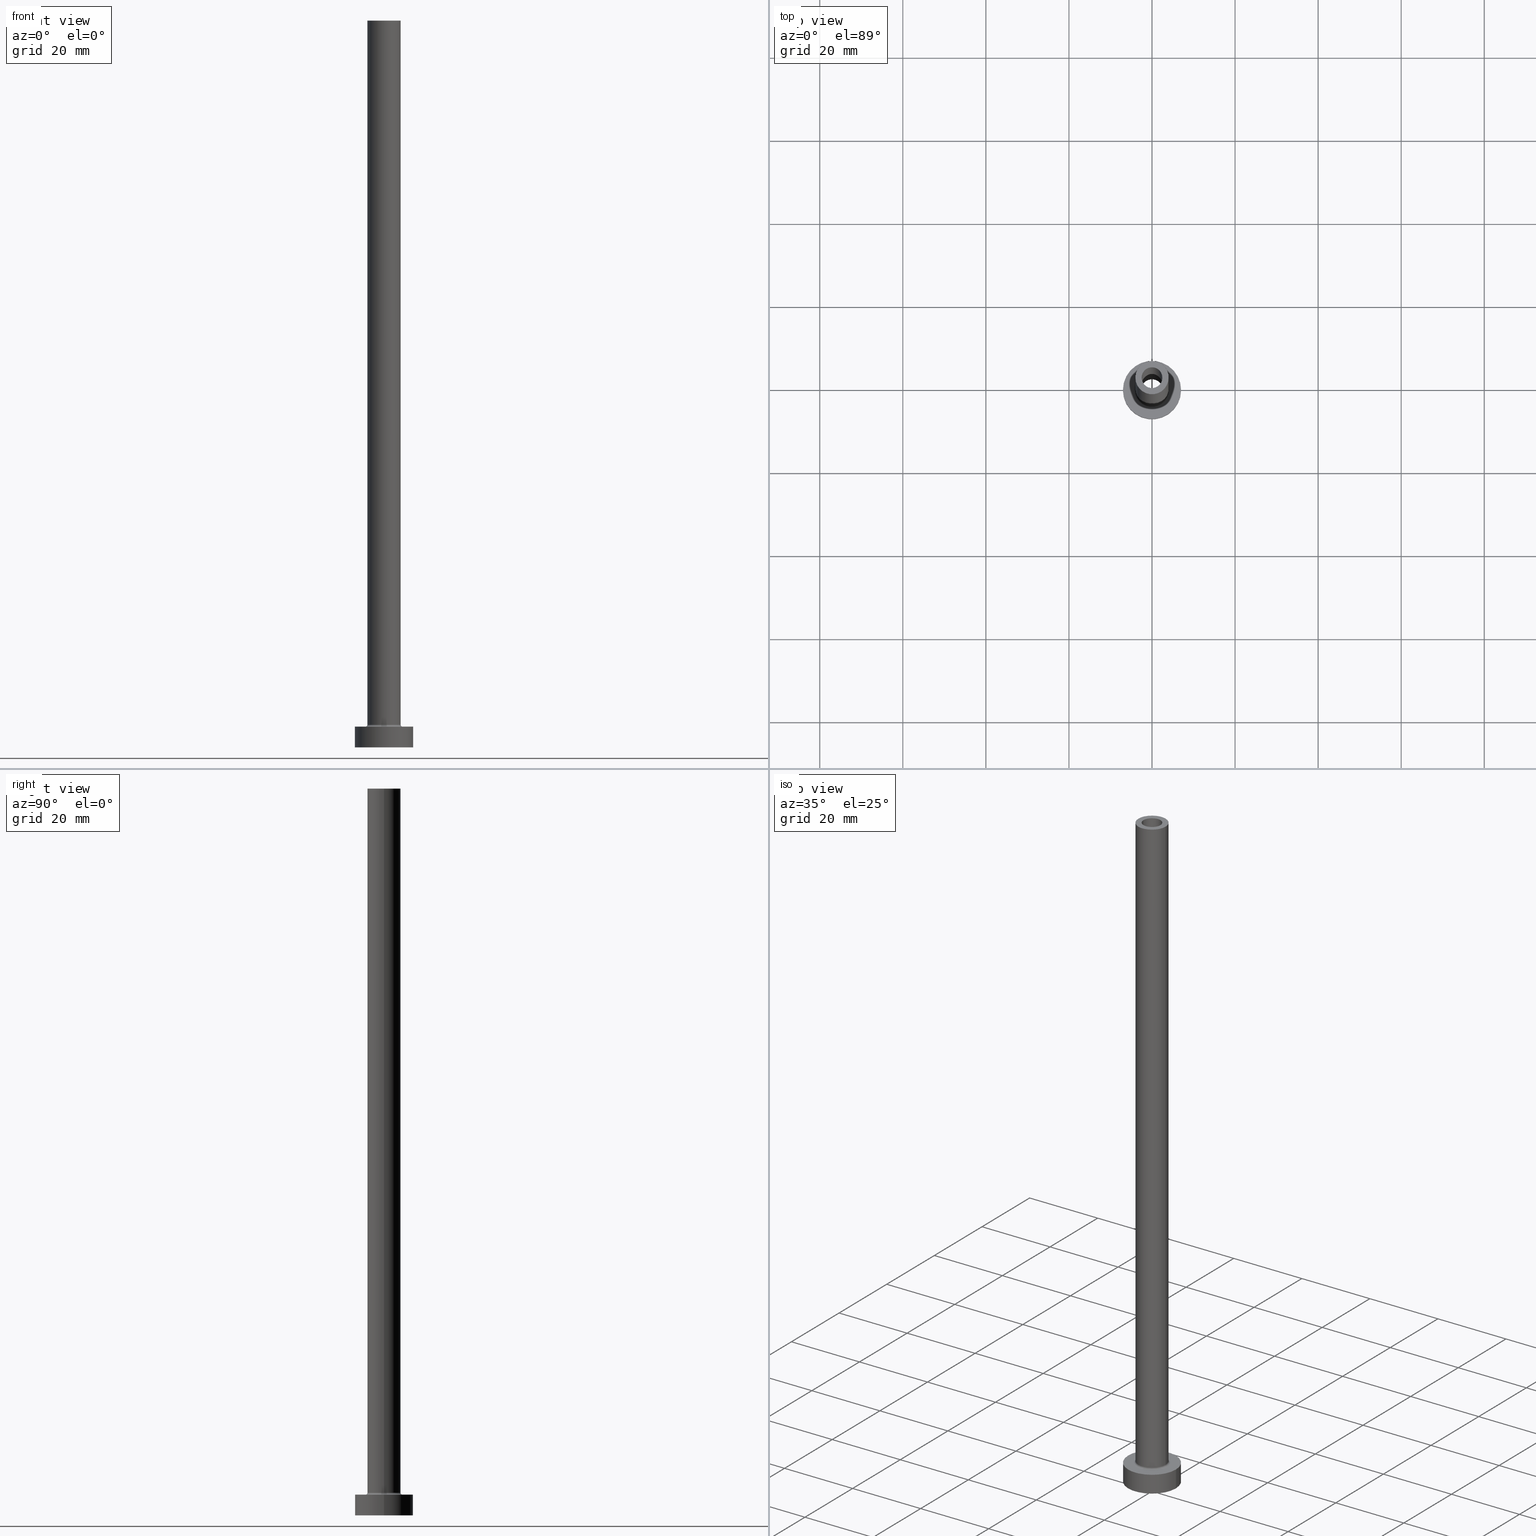
[diagram: canonical four-view strip — front | top / right | iso, engineering-drawing reading convention]
A machine part, canonical four-view strip (front | top / right | iso — engineering-drawing reading convention). The complete STEP part file that produces these views, byte-faithful:
ISO-10303-21;
HEADER;
FILE_DESCRIPTION (( 'STEP AP203' ),
    '1' );
FILE_NAME ('a80d.STEP',
    '2023-02-13T10:13:16',
    ( '' ),
    ( '' ),
    'SwSTEP 2.0',
    'SolidWorks 2019',
    '' );
FILE_SCHEMA (( 'CONFIG_CONTROL_DESIGN' ));
ENDSEC;

DATA;
#1 = ORIENTED_EDGE ( 'NONE', *, *, #325, .T. ) ;
#2 = CIRCLE ( 'NONE', #38, 7.000000000000000000 ) ;
#3 = DIRECTION ( 'NONE',  ( 0.000000000000000000, -1.000000000000000000, 0.000000000000000000 ) ) ;
#4 = ORIENTED_EDGE ( 'NONE', *, *, #135, .F. ) ;
#5 = DATE_AND_TIME ( #50, #236 ) ;
#6 = ORIENTED_EDGE ( 'NONE', *, *, #48, .F. ) ;
#7 = APPROVAL_ROLE ( '' ) ;
#8 = AXIS2_PLACEMENT_3D ( 'NONE', #428, #69, #29 ) ;
#9 = FACE_OUTER_BOUND ( 'NONE', #154, .T. ) ;
#10 = LOCAL_TIME ( 11, 13, 16.00000000000000000, #118 ) ;
#11 = CARTESIAN_POINT ( 'NONE',  ( 0.000000000000000000, 0.000000000000000000, 0.000000000000000000 ) ) ;
#12 = CARTESIAN_POINT ( 'NONE',  ( -4.500000000000000888, 5.510910596163088569E-16, 5.000000000000002665 ) ) ;
#13 = DATE_TIME_ROLE ( 'creation_date' ) ;
#14 = CARTESIAN_POINT ( 'NONE',  ( 2.500000000000000000, 3.061616997868383141E-16, 130.0000000000000000 ) ) ;
#15 = ADVANCED_FACE ( 'NONE', ( #367 ), #110, .F. ) ;
#16 = MECHANICAL_CONTEXT ( 'NONE', #71, 'mechanical' ) ;
#17 = CARTESIAN_POINT ( 'NONE',  ( 0.000000000000000000, 0.000000000000000000, 5.000000000000000000 ) ) ;
#18 = EDGE_LOOP ( 'NONE', ( #225, #63, #220, #111 ) ) ;
#19 = DIRECTION ( 'NONE',  ( 0.000000000000000000, 0.000000000000000000, -1.000000000000000000 ) ) ;
#20 = AXIS2_PLACEMENT_3D ( 'NONE', #382, #415, #414 ) ;
#21 = MANIFOLD_SOLID_BREP ( 'Odebrat vysunut�m4', #316 ) ;
#22 = DIRECTION ( 'NONE',  ( 0.000000000000000000, 0.000000000000000000, 1.000000000000000000 ) ) ;
#23 = DIRECTION ( 'NONE',  ( 1.000000000000000000, 0.000000000000000000, 0.000000000000000000 ) ) ;
#24 = EDGE_LOOP ( 'NONE', ( #172, #286, #186, #183 ) ) ;
#25 = PERSON ( 'NEUR�EN�', 'NEUR�EN�', 'NEUR�EN�', ('NEUR�EN�'), ('NEUR�EN�'), ('NEUR�EN�') ) ;
#26 = DIRECTION ( 'NONE',  ( 1.000000000000000000, 0.000000000000000000, 0.000000000000000000 ) ) ;
#27 = APPROVAL ( #46, 'NEUR�EN�' ) ;
#28 = DIRECTION ( 'NONE',  ( -0.000000000000000000, -0.000000000000000000, -1.000000000000000000 ) ) ;
#29 = DIRECTION ( 'NONE',  ( -1.000000000000000000, 0.000000000000000000, 0.000000000000000000 ) ) ;
#30 = EDGE_LOOP ( 'NONE', ( #290, #40, #200, #393 ) ) ;
#31 = DIRECTION ( 'NONE',  ( -1.000000000000000000, 0.000000000000000000, 0.000000000000000000 ) ) ;
#32 = ADVANCED_FACE ( 'NONE', ( #161, #231 ), #51, .T. ) ;
#33 = EDGE_LOOP ( 'NONE', ( #255, #423, #295, #37 ) ) ;
#34 = DIRECTION ( 'NONE',  ( -1.000000000000000000, 0.000000000000000000, 0.000000000000000000 ) ) ;
#35 = AXIS2_PLACEMENT_3D ( 'NONE', #56, #214, #93 ) ;
#36 = VERTEX_POINT ( 'NONE', #14 ) ;
#37 = ORIENTED_EDGE ( 'NONE', *, *, #253, .F. ) ;
#38 = AXIS2_PLACEMENT_3D ( 'NONE', #341, #165, #407 ) ;
#39 = CARTESIAN_POINT ( 'NONE',  ( -4.000000000000000000, 0.000000000000000000, 175.0000000000000284 ) ) ;
#40 = ORIENTED_EDGE ( 'NONE', *, *, #412, .T. ) ;
#41 = ADVANCED_FACE ( 'NONE', ( #440, #195 ), #203, .F. ) ;
#42 = CALENDAR_DATE ( 2023, 13, 2 ) ;
#43 = CARTESIAN_POINT ( 'NONE',  ( 0.000000000000000000, 0.000000000000000000, 5.500000000000005329 ) ) ;
#44 = APPROVAL_DATE_TIME ( #233, #27 ) ;
#45 = DIRECTION ( 'NONE',  ( 0.000000000000000000, 0.000000000000000000, 1.000000000000000000 ) ) ;
#46 = APPROVAL_STATUS ( 'not_yet_approved' ) ;
#47 = ORIENTED_EDGE ( 'NONE', *, *, #238, .F. ) ;
#48 = EDGE_CURVE ( 'NONE', #109, #99, #416, .T. ) ;
#49 = CARTESIAN_POINT ( 'NONE',  ( 4.500000000000000888, 0.000000000000000000, 5.000000000000002665 ) ) ;
#50 = CALENDAR_DATE ( 2023, 13, 2 ) ;
#51 = PLANE ( 'NONE',  #173 ) ;
#52 = AXIS2_PLACEMENT_3D ( 'NONE', #259, #454, #34 ) ;
#53 = DIRECTION ( 'NONE',  ( 0.000000000000000000, 0.000000000000000000, 1.000000000000000000 ) ) ;
#54 = EDGE_CURVE ( 'NONE', #248, #36, #163, .T. ) ;
#55 = DIRECTION ( 'NONE',  ( -1.000000000000000000, 0.000000000000000000, 0.000000000000000000 ) ) ;
#56 = CARTESIAN_POINT ( 'NONE',  ( 0.000000000000000000, 0.000000000000000000, 0.000000000000000000 ) ) ;
#57 = PRODUCT ( 'a80d', 'a80d', '', ( #16 ) ) ;
#58 = CARTESIAN_POINT ( 'NONE',  ( 0.000000000000000000, 0.000000000000000000, 0.000000000000000000 ) ) ;
#59 = ORIENTED_EDGE ( 'NONE', *, *, #135, .T. ) ;
#60 = EDGE_CURVE ( 'NONE', #74, #80, #2, .T. ) ;
#61 = CARTESIAN_POINT ( 'NONE',  ( -4.000000000000000000, 0.000000000000000000, 5.500000000000005329 ) ) ;
#62 = CARTESIAN_POINT ( 'NONE',  ( 0.000000000000000000, 0.000000000000000000, 5.000000000000000000 ) ) ;
#63 = ORIENTED_EDGE ( 'NONE', *, *, #262, .F. ) ;
#64 = DIRECTION ( 'NONE',  ( -1.000000000000000000, 0.000000000000000000, 0.000000000000000000 ) ) ;
#65 = ORIENTED_EDGE ( 'NONE', *, *, #107, .T. ) ;
#66 = AXIS2_PLACEMENT_3D ( 'NONE', #299, #237, #342 ) ;
#67 = CARTESIAN_POINT ( 'NONE',  ( 4.000000000000000000, 4.898587196589412829E-16, 175.0000000000000284 ) ) ;
#68 = ORIENTED_EDGE ( 'NONE', *, *, #318, .F. ) ;
#69 = DIRECTION ( 'NONE',  ( 0.000000000000000000, 0.000000000000000000, -1.000000000000000000 ) ) ;
#70 = VECTOR ( 'NONE', #174, 1000.000000000000000 ) ;
#71 = APPLICATION_CONTEXT ( 'configuration controlled 3d designs of mechanical parts and assemblies' ) ;
#72 = VERTEX_POINT ( 'NONE', #334 ) ;
#73 = CARTESIAN_POINT ( 'NONE',  ( 0.000000000000000000, 0.000000000000000000, 0.000000000000000000 ) ) ;
#74 = VERTEX_POINT ( 'NONE', #307 ) ;
#75 = ADVANCED_FACE ( 'NONE', ( #264, #9 ), #78, .T. ) ;
#76 = VECTOR ( 'NONE', #405, 1000.000000000000000 ) ;
#77 = APPROVAL_STATUS ( 'not_yet_approved' ) ;
#78 = PLANE ( 'NONE',  #309 ) ;
#79 = CALENDAR_DATE ( 2023, 13, 2 ) ;
#80 = VERTEX_POINT ( 'NONE', #89 ) ;
#81 = VECTOR ( 'NONE', #19, 1000.000000000000000 ) ;
#82 = CIRCLE ( 'NONE', #346, 2.649999999999999911 ) ;
#83 = EDGE_CURVE ( 'NONE', #376, #151, #204, .T. ) ;
#84 = APPROVAL_STATUS ( 'not_yet_approved' ) ;
#85 = FACE_OUTER_BOUND ( 'NONE', #30, .T. ) ;
#86 = APPROVAL_ROLE ( '' ) ;
#87 = DIRECTION ( 'NONE',  ( 0.000000000000000000, 0.000000000000000000, 1.000000000000000000 ) ) ;
#88 = DIRECTION ( 'NONE',  ( 1.000000000000000000, 0.000000000000000000, 0.000000000000000000 ) ) ;
#89 = CARTESIAN_POINT ( 'NONE',  ( -7.000000000000000000, 0.000000000000000000, 5.000000000000000000 ) ) ;
#90 = CIRCLE ( 'NONE', #351, 2.500000000000000000 ) ;
#91 = FACE_OUTER_BOUND ( 'NONE', #193, .T. ) ;
#92 = CC_DESIGN_APPROVAL ( #215, ( #166 ) ) ;
#93 = DIRECTION ( 'NONE',  ( 1.000000000000000000, 0.000000000000000000, 0.000000000000000000 ) ) ;
#94 = DIRECTION ( 'NONE',  ( 0.000000000000000000, 0.000000000000000000, 1.000000000000000000 ) ) ;
#95 = ORIENTED_EDGE ( 'NONE', *, *, #96, .T. ) ;
#96 = EDGE_CURVE ( 'NONE', #431, #157, #199, .T. ) ;
#97 = DIRECTION ( 'NONE',  ( 0.000000000000000000, 0.000000000000000000, 1.000000000000000000 ) ) ;
#98 = CIRCLE ( 'NONE', #189, 4.500000000000000888 ) ;
#99 = VERTEX_POINT ( 'NONE', #12 ) ;
#100 = CARTESIAN_POINT ( 'NONE',  ( 2.500000000000000000, 3.061616997868383141E-16, 175.0000000000000284 ) ) ;
#101 = ORGANIZATION ( 'NEUR�EN�', 'NEUR�EN�', '' ) ;
#102 = CARTESIAN_POINT ( 'NONE',  ( 0.000000000000000000, 0.000000000000000000, 0.000000000000000000 ) ) ;
#103 = CIRCLE ( 'NONE', #368, 7.000000000000000000 ) ;
#104 = FACE_OUTER_BOUND ( 'NONE', #18, .T. ) ;
#105 = ORIENTED_EDGE ( 'NONE', *, *, #253, .T. ) ;
#106 = UNCERTAINTY_MEASURE_WITH_UNIT (LENGTH_MEASURE( 1.000000000000000082E-05 ), #256, 'distance_accuracy_value', 'NONE');
#107 = EDGE_CURVE ( 'NONE', #260, #99, #182, .T. ) ;
#108 = LINE ( 'NONE', #67, #417 ) ;
#109 = VERTEX_POINT ( 'NONE', #49 ) ;
#110 = TOROIDAL_SURFACE ( 'NONE', #372, 4.500000000000000888, 0.5000000000000000000 ) ;
#111 = ORIENTED_EDGE ( 'NONE', *, *, #362, .F. ) ;
#112 = DIRECTION ( 'NONE',  ( 1.000000000000000000, 0.000000000000000000, 0.000000000000000000 ) ) ;
#113 = CC_DESIGN_PERSON_AND_ORGANIZATION_ASSIGNMENT ( #442, #121, ( #348 ) ) ;
#114 = VERTEX_POINT ( 'NONE', #122 ) ;
#115 = AXIS2_PLACEMENT_3D ( 'NONE', #359, #355, #31 ) ;
#116 = DIRECTION ( 'NONE',  ( 0.000000000000000000, 0.000000000000000000, 1.000000000000000000 ) ) ;
#117 = ORIENTED_EDGE ( 'NONE', *, *, #276, .F. ) ;
#118 = COORDINATED_UNIVERSAL_TIME_OFFSET ( 1, 0, .AHEAD. ) ;
#119 = ORIENTED_EDGE ( 'NONE', *, *, #267, .F. ) ;
#120 = ADVANCED_FACE ( 'NONE', ( #85 ), #201, .T. ) ;
#121 = PERSON_AND_ORGANIZATION_ROLE ( 'creator' ) ;
#122 = CARTESIAN_POINT ( 'NONE',  ( 4.000000000000000000, 4.898587196589412829E-16, 5.500000000000005329 ) ) ;
#123 = AXIS2_PLACEMENT_3D ( 'NONE', #350, #319, #317 ) ;
#124 = PERSON_AND_ORGANIZATION_ROLE ( 'design_supplier' ) ;
#125 = CARTESIAN_POINT ( 'NONE',  ( 0.000000000000000000, 0.000000000000000000, 5.000000000000000000 ) ) ;
#126 =( GEOMETRIC_REPRESENTATION_CONTEXT ( 3 ) GLOBAL_UNCERTAINTY_ASSIGNED_CONTEXT ( ( #106 ) ) GLOBAL_UNIT_ASSIGNED_CONTEXT ( ( #256, #300, #298 ) ) REPRESENTATION_CONTEXT ( 'NONE', 'WORKASPACE' ) );
#127 = CALENDAR_DATE ( 2023, 13, 2 ) ;
#128 = ORIENTED_EDGE ( 'NONE', *, *, #202, .F. ) ;
#129 = CARTESIAN_POINT ( 'NONE',  ( 0.000000000000000000, 0.000000000000000000, 5.500000000000005329 ) ) ;
#130 = PRODUCT_RELATED_PRODUCT_CATEGORY ( 'detail', '', ( #57 ) ) ;
#131 = DIRECTION ( 'NONE',  ( -1.000000000000000000, 0.000000000000000000, 0.000000000000000000 ) ) ;
#132 = CIRCLE ( 'NONE', #432, 7.000000000000000000 ) ;
#133 = DIRECTION ( 'NONE',  ( -0.000000000000000000, -0.000000000000000000, -1.000000000000000000 ) ) ;
#134 = ORIENTED_EDGE ( 'NONE', *, *, #276, .T. ) ;
#135 = EDGE_CURVE ( 'NONE', #450, #358, #241, .T. ) ;
#136 = CARTESIAN_POINT ( 'NONE',  ( 0.000000000000000000, 0.000000000000000000, 175.0000000000000284 ) ) ;
#137 = ORIENTED_EDGE ( 'NONE', *, *, #412, .F. ) ;
#138 = CIRCLE ( 'NONE', #171, 2.500000000000000000 ) ;
#139 = CARTESIAN_POINT ( 'NONE',  ( 0.000000000000000000, 0.000000000000000000, 0.000000000000000000 ) ) ;
#140 = CIRCLE ( 'NONE', #217, 0.5000000000000004441 ) ;
#141 = EDGE_LOOP ( 'NONE', ( #218, #446, #297, #293 ) ) ;
#142 = CARTESIAN_POINT ( 'NONE',  ( 7.000000000000000000, 8.572527594031473190E-16, 5.000000000000000000 ) ) ;
#143 = LINE ( 'NONE', #142, #398 ) ;
#144 = EDGE_LOOP ( 'NONE', ( #68, #429 ) ) ;
#145 = EDGE_CURVE ( 'NONE', #151, #434, #384, .T. ) ;
#146 = VECTOR ( 'NONE', #28, 1000.000000000000000 ) ;
#147 = CARTESIAN_POINT ( 'NONE',  ( -4.000000000000000000, 0.000000000000000000, 175.0000000000000284 ) ) ;
#148 = ORIENTED_EDGE ( 'NONE', *, *, #389, .T. ) ;
#149 = AXIS2_PLACEMENT_3D ( 'NONE', #102, #187, #219 ) ;
#150 = CC_DESIGN_APPROVAL ( #27, ( #198 ) ) ;
#151 = VERTEX_POINT ( 'NONE', #177 ) ;
#152 = ADVANCED_FACE ( 'NONE', ( #91 ), #213, .T. ) ;
#153 = CARTESIAN_POINT ( 'NONE',  ( 4.000000000000000000, 4.898587196589412829E-16, 175.0000000000000284 ) ) ;
#154 = EDGE_LOOP ( 'NONE', ( #361, #396 ) ) ;
#155 = CIRCLE ( 'NONE', #20, 4.000000000000000000 ) ;
#156 = SHAPE_DEFINITION_REPRESENTATION ( #385, #456 ) ;
#157 = VERTEX_POINT ( 'NONE', #445 ) ;
#158 = DIRECTION ( 'NONE',  ( 1.000000000000000000, 0.000000000000000000, -0.000000000000000000 ) ) ;
#159 = AXIS2_PLACEMENT_3D ( 'NONE', #326, #221, #64 ) ;
#160 = PERSON_AND_ORGANIZATION_ROLE ( 'classification_officer' ) ;
#161 = FACE_BOUND ( 'NONE', #144, .T. ) ;
#162 = APPLICATION_PROTOCOL_DEFINITION ( 'international standard', 'config_control_design', 1994, #71 ) ;
#163 = LINE ( 'NONE', #304, #76 ) ;
#164 = COORDINATED_UNIVERSAL_TIME_OFFSET ( 1, 0, .AHEAD. ) ;
#165 = DIRECTION ( 'NONE',  ( 0.000000000000000000, 0.000000000000000000, 1.000000000000000000 ) ) ;
#166 = SECURITY_CLASSIFICATION ( '', '', #335 ) ;
#167 = AXIS2_PLACEMENT_3D ( 'NONE', #373, #45, #261 ) ;
#168 = LOCAL_TIME ( 11, 13, 16.00000000000000000, #164 ) ;
#169 = DIRECTION ( 'NONE',  ( 1.224646799147353207E-16, 1.000000000000000000, -0.000000000000000000 ) ) ;
#170 = DIRECTION ( 'NONE',  ( 1.000000000000000000, 0.000000000000000000, 0.000000000000000000 ) ) ;
#171 = AXIS2_PLACEMENT_3D ( 'NONE', #345, #94, #413 ) ;
#172 = ORIENTED_EDGE ( 'NONE', *, *, #318, .T. ) ;
#173 = AXIS2_PLACEMENT_3D ( 'NONE', #269, #401, #266 ) ;
#174 = DIRECTION ( 'NONE',  ( 0.000000000000000000, 0.000000000000000000, -1.000000000000000000 ) ) ;
#175 = CARTESIAN_POINT ( 'NONE',  ( -2.649999999999999911, 0.000000000000000000, 137.4953318805773961 ) ) ;
#176 = ORIENTED_EDGE ( 'NONE', *, *, #343, .F. ) ;
#177 = CARTESIAN_POINT ( 'NONE',  ( 2.649999999999999911, 3.245314017740485962E-16, 130.0000000000000000 ) ) ;
#178 = LOCAL_TIME ( 11, 13, 16.00000000000000000, #263 ) ;
#179 = CC_DESIGN_PERSON_AND_ORGANIZATION_ASSIGNMENT ( #375, #124, ( #198 ) ) ;
#180 = CARTESIAN_POINT ( 'NONE',  ( 0.000000000000000000, 0.000000000000000000, 175.0000000000000284 ) ) ;
#181 = AXIS2_PLACEMENT_3D ( 'NONE', #294, #457, #392 ) ;
#182 = CIRCLE ( 'NONE', #391, 0.5000000000000004441 ) ;
#183 = ORIENTED_EDGE ( 'NONE', *, *, #96, .F. ) ;
#184 = DESIGN_CONTEXT ( 'detailed design', #284, 'design' ) ;
#185 = FACE_OUTER_BOUND ( 'NONE', #455, .T. ) ;
#186 = ORIENTED_EDGE ( 'NONE', *, *, #222, .F. ) ;
#187 = DIRECTION ( 'NONE',  ( 0.000000000000000000, 0.000000000000000000, 1.000000000000000000 ) ) ;
#188 = ORIENTED_EDGE ( 'NONE', *, *, #312, .T. ) ;
#189 = AXIS2_PLACEMENT_3D ( 'NONE', #62, #251, #112 ) ;
#190 = EDGE_CURVE ( 'NONE', #80, #74, #103, .T. ) ;
#191 = ORIENTED_EDGE ( 'NONE', *, *, #48, .T. ) ;
#192 = FACE_OUTER_BOUND ( 'NONE', #228, .T. ) ;
#193 = EDGE_LOOP ( 'NONE', ( #252, #4, #356, #399 ) ) ;
#194 = DATE_AND_TIME ( #42, #178 ) ;
#195 = FACE_OUTER_BOUND ( 'NONE', #459, .T. ) ;
#196 = PERSON_AND_ORGANIZATION ( #25, #101 ) ;
#197 = EDGE_CURVE ( 'NONE', #36, #157, #138, .T. ) ;
#198 = PRODUCT_DEFINITION_FORMATION_WITH_SPECIFIED_SOURCE ( 'LIBOVOLN�', '', #57, .NOT_KNOWN. ) ;
#199 = LINE ( 'NONE', #239, #453 ) ;
#200 = ORIENTED_EDGE ( 'NONE', *, *, #267, .T. ) ;
#201 = CYLINDRICAL_SURFACE ( 'NONE', #433, 7.000000000000000000 ) ;
#202 = EDGE_CURVE ( 'NONE', #434, #72, #296, .T. ) ;
#203 = PLANE ( 'NONE',  #167 ) ;
#204 = CIRCLE ( 'NONE', #66, 2.649999999999999911 ) ;
#205 = CYLINDRICAL_SURFACE ( 'NONE', #383, 7.000000000000000000 ) ;
#206 = EDGE_LOOP ( 'NONE', ( #47, #65, #6, #176 ) ) ;
#207 = EDGE_CURVE ( 'NONE', #80, #223, #349, .T. ) ;
#208 = LINE ( 'NONE', #175, #81 ) ;
#209 = CARTESIAN_POINT ( 'NONE',  ( 0.000000000000000000, 0.000000000000000000, 175.0000000000000284 ) ) ;
#210 = ORIENTED_EDGE ( 'NONE', *, *, #197, .T. ) ;
#211 = CC_DESIGN_SECURITY_CLASSIFICATION ( #166, ( #198 ) ) ;
#212 = CC_DESIGN_APPROVAL ( #280, ( #348 ) ) ;
#213 = CYLINDRICAL_SURFACE ( 'NONE', #340, 4.000000000000000000 ) ;
#214 = DIRECTION ( 'NONE',  ( 0.000000000000000000, 0.000000000000000000, 1.000000000000000000 ) ) ;
#215 = APPROVAL ( #84, 'NEUR�EN�' ) ;
#216 = DIRECTION ( 'NONE',  ( -0.000000000000000000, -0.000000000000000000, -1.000000000000000000 ) ) ;
#217 = AXIS2_PLACEMENT_3D ( 'NONE', #288, #3, #420 ) ;
#218 = ORIENTED_EDGE ( 'NONE', *, *, #389, .F. ) ;
#219 = DIRECTION ( 'NONE',  ( 1.000000000000000000, 0.000000000000000000, -0.000000000000000000 ) ) ;
#220 = ORIENTED_EDGE ( 'NONE', *, *, #343, .T. ) ;
#221 = DIRECTION ( 'NONE',  ( -0.000000000000000000, -0.000000000000000000, -1.000000000000000000 ) ) ;
#222 = EDGE_CURVE ( 'NONE', #157, #36, #90, .T. ) ;
#223 = VERTEX_POINT ( 'NONE', #344 ) ;
#224 = CARTESIAN_POINT ( 'NONE',  ( -2.500000000000000000, 0.000000000000000000, 175.0000000000000284 ) ) ;
#225 = ORIENTED_EDGE ( 'NONE', *, *, #107, .F. ) ;
#226 = VECTOR ( 'NONE', #452, 1000.000000000000000 ) ;
#227 = CYLINDRICAL_SURFACE ( 'NONE', #8, 2.649999999999999911 ) ;
#228 = EDGE_LOOP ( 'NONE', ( #353, #119 ) ) ;
#229 = AXIS2_PLACEMENT_3D ( 'NONE', #271, #234, #339 ) ;
#230 = DATE_AND_TIME ( #366, #168 ) ;
#231 = FACE_OUTER_BOUND ( 'NONE', #427, .T. ) ;
#232 = ADVANCED_FACE ( 'NONE', ( #281 ), #386, .F. ) ;
#233 = DATE_AND_TIME ( #79, #10 ) ;
#234 = DIRECTION ( 'NONE',  ( -0.000000000000000000, -0.000000000000000000, -1.000000000000000000 ) ) ;
#235 = COORDINATED_UNIVERSAL_TIME_OFFSET ( 1, 0, .AHEAD. ) ;
#236 = LOCAL_TIME ( 11, 13, 16.00000000000000000, #265 ) ;
#237 = DIRECTION ( 'NONE',  ( 0.000000000000000000, 0.000000000000000000, 1.000000000000000000 ) ) ;
#238 = EDGE_CURVE ( 'NONE', #260, #114, #155, .T. ) ;
#239 = CARTESIAN_POINT ( 'NONE',  ( -2.500000000000000000, 0.000000000000000000, 175.0000000000000284 ) ) ;
#240 = CARTESIAN_POINT ( 'NONE',  ( 0.000000000000000000, 0.000000000000000000, 5.000000000000000000 ) ) ;
#241 = CIRCLE ( 'NONE', #424, 4.000000000000000000 ) ;
#242 = DIRECTION ( 'NONE',  ( 1.000000000000000000, 0.000000000000000000, 0.000000000000000000 ) ) ;
#243 = DIRECTION ( 'NONE',  ( 0.000000000000000000, 0.000000000000000000, 1.000000000000000000 ) ) ;
#244 = CIRCLE ( 'NONE', #35, 7.000000000000000000 ) ;
#245 = ORIENTED_EDGE ( 'NONE', *, *, #197, .F. ) ;
#246 = DIRECTION ( 'NONE',  ( 1.000000000000000000, 0.000000000000000000, 0.000000000000000000 ) ) ;
#247 = CARTESIAN_POINT ( 'NONE',  ( 0.000000000000000000, 0.000000000000000000, 130.0000000000000000 ) ) ;
#248 = VERTEX_POINT ( 'NONE', #100 ) ;
#249 = CC_DESIGN_PERSON_AND_ORGANIZATION_ASSIGNMENT ( #196, #331, ( #198 ) ) ;
#250 = DIRECTION ( 'NONE',  ( 1.000000000000000000, 0.000000000000000000, 0.000000000000000000 ) ) ;
#251 = DIRECTION ( 'NONE',  ( -0.000000000000000000, -0.000000000000000000, -1.000000000000000000 ) ) ;
#252 = ORIENTED_EDGE ( 'NONE', *, *, #460, .F. ) ;
#253 = EDGE_CURVE ( 'NONE', #376, #72, #208, .T. ) ;
#254 = DIRECTION ( 'NONE',  ( -0.000000000000000000, -0.000000000000000000, -1.000000000000000000 ) ) ;
#255 = ORIENTED_EDGE ( 'NONE', *, *, #83, .T. ) ;
#256 =( LENGTH_UNIT ( ) NAMED_UNIT ( * ) SI_UNIT ( .MILLI., .METRE. ) );
#257 = ORIENTED_EDGE ( 'NONE', *, *, #325, .F. ) ;
#258 = AXIS2_PLACEMENT_3D ( 'NONE', #139, #449, #26 ) ;
#259 = CARTESIAN_POINT ( 'NONE',  ( 0.000000000000000000, 0.000000000000000000, 175.0000000000000284 ) ) ;
#260 = VERTEX_POINT ( 'NONE', #61 ) ;
#261 = DIRECTION ( 'NONE',  ( 1.000000000000000000, 0.000000000000000000, -0.000000000000000000 ) ) ;
#262 = EDGE_CURVE ( 'NONE', #114, #260, #458, .T. ) ;
#263 = COORDINATED_UNIVERSAL_TIME_OFFSET ( 1, 0, .AHEAD. ) ;
#264 = FACE_BOUND ( 'NONE', #329, .T. ) ;
#265 = COORDINATED_UNIVERSAL_TIME_OFFSET ( 1, 0, .AHEAD. ) ;
#266 = DIRECTION ( 'NONE',  ( 1.000000000000000000, 0.000000000000000000, -0.000000000000000000 ) ) ;
#267 = EDGE_CURVE ( 'NONE', #282, #223, #244, .T. ) ;
#268 = APPROVAL_DATE_TIME ( #371, #215 ) ;
#269 = CARTESIAN_POINT ( 'NONE',  ( 0.000000000000000000, 0.000000000000000000, 175.0000000000000284 ) ) ;
#270 = PERSON_AND_ORGANIZATION ( #25, #101 ) ;
#271 = CARTESIAN_POINT ( 'NONE',  ( 0.000000000000000000, 0.000000000000000000, 5.000000000000000000 ) ) ;
#272 = CARTESIAN_POINT ( 'NONE',  ( -7.000000000000000000, 0.000000000000000000, 5.000000000000000000 ) ) ;
#273 = AXIS2_PLACEMENT_3D ( 'NONE', #136, #97, #246 ) ;
#274 = CARTESIAN_POINT ( 'NONE',  ( 0.000000000000000000, 0.000000000000000000, 5.000000000000000000 ) ) ;
#275 = APPROVAL_PERSON_ORGANIZATION ( #338, #215, #86 ) ;
#276 = EDGE_CURVE ( 'NONE', #151, #376, #360, .T. ) ;
#277 = DIRECTION ( 'NONE',  ( 1.000000000000000000, 0.000000000000000000, 0.000000000000000000 ) ) ;
#278 = DIRECTION ( 'NONE',  ( 0.000000000000000000, 0.000000000000000000, -1.000000000000000000 ) ) ;
#279 = ORIENTED_EDGE ( 'NONE', *, *, #362, .T. ) ;
#280 = APPROVAL ( #77, 'NEUR�EN�' ) ;
#281 = FACE_OUTER_BOUND ( 'NONE', #24, .T. ) ;
#282 = VERTEX_POINT ( 'NONE', #410 ) ;
#283 = FACE_OUTER_BOUND ( 'NONE', #141, .T. ) ;
#284 = APPLICATION_CONTEXT ( 'configuration controlled 3d designs of mechanical parts and assemblies' ) ;
#285 = CYLINDRICAL_SURFACE ( 'NONE', #159, 4.000000000000000000 ) ;
#286 = ORIENTED_EDGE ( 'NONE', *, *, #54, .T. ) ;
#287 = ADVANCED_FACE ( 'NONE', ( #380 ), #205, .T. ) ;
#288 = CARTESIAN_POINT ( 'NONE',  ( 4.500000000000000888, 0.000000000000000000, 5.500000000000005329 ) ) ;
#289 = CIRCLE ( 'NONE', #273, 2.500000000000000000 ) ;
#290 = ORIENTED_EDGE ( 'NONE', *, *, #60, .F. ) ;
#291 = TOROIDAL_SURFACE ( 'NONE', #181, 4.500000000000000888, 0.5000000000000000000 ) ;
#292 = DIRECTION ( 'NONE',  ( 1.000000000000000000, 0.000000000000000000, 0.000000000000000000 ) ) ;
#293 = ORIENTED_EDGE ( 'NONE', *, *, #395, .F. ) ;
#294 = CARTESIAN_POINT ( 'NONE',  ( 0.000000000000000000, 0.000000000000000000, 5.500000000000005329 ) ) ;
#295 = ORIENTED_EDGE ( 'NONE', *, *, #202, .T. ) ;
#296 = CIRCLE ( 'NONE', #258, 2.649999999999999911 ) ;
#297 = ORIENTED_EDGE ( 'NONE', *, *, #262, .T. ) ;
#298 =( NAMED_UNIT ( * ) SI_UNIT ( $, .STERADIAN. ) SOLID_ANGLE_UNIT ( ) );
#299 = CARTESIAN_POINT ( 'NONE',  ( 0.000000000000000000, 0.000000000000000000, 130.0000000000000000 ) ) ;
#300 =( NAMED_UNIT ( * ) PLANE_ANGLE_UNIT ( ) SI_UNIT ( $, .RADIAN. ) );
#301 = DIRECTION ( 'NONE',  ( 0.000000000000000000, 0.000000000000000000, 1.000000000000000000 ) ) ;
#302 = CC_DESIGN_PERSON_AND_ORGANIZATION_ASSIGNMENT ( #436, #400, ( #57 ) ) ;
#303 = PERSON_AND_ORGANIZATION ( #25, #101 ) ;
#304 = CARTESIAN_POINT ( 'NONE',  ( 2.500000000000000000, 3.061616997868383141E-16, 175.0000000000000284 ) ) ;
#305 = AXIS2_PLACEMENT_3D ( 'NONE', #209, #347, #23 ) ;
#306 = PERSON_AND_ORGANIZATION ( #25, #101 ) ;
#307 = CARTESIAN_POINT ( 'NONE',  ( 7.000000000000000000, 8.572527594031473190E-16, 5.000000000000000000 ) ) ;
#308 = AXIS2_PLACEMENT_3D ( 'NONE', #11, #116, #88 ) ;
#309 = AXIS2_PLACEMENT_3D ( 'NONE', #125, #87, #158 ) ;
#310 = DIRECTION ( 'NONE',  ( -1.000000000000000000, 0.000000000000000000, 0.000000000000000000 ) ) ;
#311 = CARTESIAN_POINT ( 'NONE',  ( 0.000000000000000000, 0.000000000000000000, 175.0000000000000284 ) ) ;
#312 = EDGE_CURVE ( 'NONE', #248, #431, #430, .T. ) ;
#313 = DIRECTION ( 'NONE',  ( 1.000000000000000000, 0.000000000000000000, 0.000000000000000000 ) ) ;
#314 = APPROVAL_PERSON_ORGANIZATION ( #303, #27, #7 ) ;
#315 = ORIENTED_EDGE ( 'NONE', *, *, #145, .F. ) ;
#316 = CLOSED_SHELL ( 'NONE', ( #232, #354, #15, #419, #120, #287, #75, #337, #152, #32, #425, #381, #41, #408 ) ) ;
#317 = DIRECTION ( 'NONE',  ( 1.000000000000000000, 0.000000000000000000, 0.000000000000000000 ) ) ;
#318 = EDGE_CURVE ( 'NONE', #431, #248, #289, .T. ) ;
#319 = DIRECTION ( 'NONE',  ( 0.000000000000000000, 0.000000000000000000, 1.000000000000000000 ) ) ;
#320 = CARTESIAN_POINT ( 'NONE',  ( 0.000000000000000000, 0.000000000000000000, 175.0000000000000284 ) ) ;
#321 = FACE_OUTER_BOUND ( 'NONE', #33, .T. ) ;
#322 = EDGE_LOOP ( 'NONE', ( #137, #404, #388, #402 ) ) ;
#323 = CARTESIAN_POINT ( 'NONE',  ( 2.649999999999999911, 3.245314017740485962E-16, 0.000000000000000000 ) ) ;
#324 = ORIENTED_EDGE ( 'NONE', *, *, #54, .F. ) ;
#325 = EDGE_CURVE ( 'NONE', #72, #434, #82, .T. ) ;
#326 = CARTESIAN_POINT ( 'NONE',  ( 0.000000000000000000, 0.000000000000000000, 175.0000000000000284 ) ) ;
#327 = ORIENTED_EDGE ( 'NONE', *, *, #83, .F. ) ;
#328 = CYLINDRICAL_SURFACE ( 'NONE', #115, 2.649999999999999911 ) ;
#329 = EDGE_LOOP ( 'NONE', ( #191, #279 ) ) ;
#330 = CC_DESIGN_DATE_AND_TIME_ASSIGNMENT ( #194, #13, ( #348 ) ) ;
#331 = PERSON_AND_ORGANIZATION_ROLE ( 'creator' ) ;
#332 = EDGE_LOOP ( 'NONE', ( #257, #128 ) ) ;
#333 = APPLICATION_PROTOCOL_DEFINITION ( 'international standard', 'config_control_design', 1994, #284 ) ;
#334 = CARTESIAN_POINT ( 'NONE',  ( -2.649999999999999911, 0.000000000000000000, 0.000000000000000000 ) ) ;
#335 = SECURITY_CLASSIFICATION_LEVEL ( 'unclassified' ) ;
#336 = DIRECTION ( 'NONE',  ( 0.000000000000000000, 0.000000000000000000, -1.000000000000000000 ) ) ;
#337 = ADVANCED_FACE ( 'NONE', ( #418, #192 ), #387, .F. ) ;
#338 = PERSON_AND_ORGANIZATION ( #25, #101 ) ;
#339 = DIRECTION ( 'NONE',  ( 1.000000000000000000, 0.000000000000000000, 0.000000000000000000 ) ) ;
#340 = AXIS2_PLACEMENT_3D ( 'NONE', #320, #133, #131 ) ;
#341 = CARTESIAN_POINT ( 'NONE',  ( 0.000000000000000000, 0.000000000000000000, 5.000000000000000000 ) ) ;
#342 = DIRECTION ( 'NONE',  ( 1.000000000000000000, 0.000000000000000000, 0.000000000000000000 ) ) ;
#343 = EDGE_CURVE ( 'NONE', #114, #109, #140, .T. ) ;
#344 = CARTESIAN_POINT ( 'NONE',  ( -7.000000000000000000, 0.000000000000000000, 0.000000000000000000 ) ) ;
#345 = CARTESIAN_POINT ( 'NONE',  ( 0.000000000000000000, 0.000000000000000000, 130.0000000000000000 ) ) ;
#346 = AXIS2_PLACEMENT_3D ( 'NONE', #58, #216, #292 ) ;
#347 = DIRECTION ( 'NONE',  ( 0.000000000000000000, 0.000000000000000000, 1.000000000000000000 ) ) ;
#348 = PRODUCT_DEFINITION ( 'NEZN�M�', '', #198, #184 ) ;
#349 = LINE ( 'NONE', #272, #146 ) ;
#350 = CARTESIAN_POINT ( 'NONE',  ( 0.000000000000000000, 0.000000000000000000, 130.0000000000000000 ) ) ;
#351 = AXIS2_PLACEMENT_3D ( 'NONE', #247, #243, #242 ) ;
#352 = LINE ( 'NONE', #39, #226 ) ;
#353 = ORIENTED_EDGE ( 'NONE', *, *, #435, .F. ) ;
#354 = ADVANCED_FACE ( 'NONE', ( #321 ), #227, .F. ) ;
#355 = DIRECTION ( 'NONE',  ( 0.000000000000000000, 0.000000000000000000, -1.000000000000000000 ) ) ;
#356 = ORIENTED_EDGE ( 'NONE', *, *, #395, .T. ) ;
#357 = CARTESIAN_POINT ( 'NONE',  ( -2.649999999999999911, 0.000000000000000000, 130.0000000000000000 ) ) ;
#358 = VERTEX_POINT ( 'NONE', #153 ) ;
#359 = CARTESIAN_POINT ( 'NONE',  ( 0.000000000000000000, 0.000000000000000000, 137.4953318805773961 ) ) ;
#360 = CIRCLE ( 'NONE', #123, 2.649999999999999911 ) ;
#361 = ORIENTED_EDGE ( 'NONE', *, *, #190, .T. ) ;
#362 = EDGE_CURVE ( 'NONE', #99, #109, #98, .T. ) ;
#363 = APPROVAL_PERSON_ORGANIZATION ( #270, #280, #439 ) ;
#364 = DIRECTION ( 'NONE',  ( 0.000000000000000000, 0.000000000000000000, 1.000000000000000000 ) ) ;
#365 = ORIENTED_EDGE ( 'NONE', *, *, #222, .T. ) ;
#366 = CALENDAR_DATE ( 2023, 13, 2 ) ;
#367 = FACE_OUTER_BOUND ( 'NONE', #206, .T. ) ;
#368 = AXIS2_PLACEMENT_3D ( 'NONE', #240, #411, #277 ) ;
#369 = APPROVAL_DATE_TIME ( #230, #280 ) ;
#370 = DIRECTION ( 'NONE',  ( 1.000000000000000000, 0.000000000000000000, 0.000000000000000000 ) ) ;
#371 = DATE_AND_TIME ( #127, #406 ) ;
#372 = AXIS2_PLACEMENT_3D ( 'NONE', #43, #301, #370 ) ;
#373 = CARTESIAN_POINT ( 'NONE',  ( 0.000000000000000000, 0.000000000000000000, 130.0000000000000000 ) ) ;
#374 = DIRECTION ( 'NONE',  ( -1.000000000000000000, 1.224646799147351482E-16, 0.000000000000000000 ) ) ;
#375 = PERSON_AND_ORGANIZATION ( #25, #101 ) ;
#376 = VERTEX_POINT ( 'NONE', #357 ) ;
#377 = CIRCLE ( 'NONE', #441, 4.000000000000000000 ) ;
#378 = CC_DESIGN_DATE_AND_TIME_ASSIGNMENT ( #5, #403, ( #166 ) ) ;
#379 = DIRECTION ( 'NONE',  ( -1.000000000000000000, 0.000000000000000000, 0.000000000000000000 ) ) ;
#380 = FACE_OUTER_BOUND ( 'NONE', #322, .T. ) ;
#381 = ADVANCED_FACE ( 'NONE', ( #422 ), #328, .F. ) ;
#382 = CARTESIAN_POINT ( 'NONE',  ( 0.000000000000000000, 0.000000000000000000, 5.500000000000005329 ) ) ;
#383 = AXIS2_PLACEMENT_3D ( 'NONE', #274, #448, #55 ) ;
#384 = LINE ( 'NONE', #447, #70 ) ;
#385 = PRODUCT_DEFINITION_SHAPE ( 'NONE', 'NONE',  #348 ) ;
#386 = CYLINDRICAL_SURFACE ( 'NONE', #409, 2.500000000000000000 ) ;
#387 = PLANE ( 'NONE',  #149 ) ;
#388 = ORIENTED_EDGE ( 'NONE', *, *, #207, .T. ) ;
#389 = EDGE_CURVE ( 'NONE', #358, #450, #377, .T. ) ;
#390 = EDGE_LOOP ( 'NONE', ( #365, #210 ) ) ;
#391 = AXIS2_PLACEMENT_3D ( 'NONE', #437, #169, #374 ) ;
#392 = DIRECTION ( 'NONE',  ( 1.000000000000000000, 0.000000000000000000, 0.000000000000000000 ) ) ;
#393 = ORIENTED_EDGE ( 'NONE', *, *, #207, .F. ) ;
#394 = CYLINDRICAL_SURFACE ( 'NONE', #52, 2.500000000000000000 ) ;
#395 = EDGE_CURVE ( 'NONE', #450, #260, #352, .T. ) ;
#396 = ORIENTED_EDGE ( 'NONE', *, *, #60, .T. ) ;
#397 = DIRECTION ( 'NONE',  ( 1.000000000000000000, 0.000000000000000000, 0.000000000000000000 ) ) ;
#398 = VECTOR ( 'NONE', #254, 1000.000000000000000 ) ;
#399 = ORIENTED_EDGE ( 'NONE', *, *, #238, .T. ) ;
#400 = PERSON_AND_ORGANIZATION_ROLE ( 'design_owner' ) ;
#401 = DIRECTION ( 'NONE',  ( 0.000000000000000000, 0.000000000000000000, 1.000000000000000000 ) ) ;
#402 = ORIENTED_EDGE ( 'NONE', *, *, #435, .T. ) ;
#403 = DATE_TIME_ROLE ( 'classification_date' ) ;
#404 = ORIENTED_EDGE ( 'NONE', *, *, #190, .F. ) ;
#405 = DIRECTION ( 'NONE',  ( 0.000000000000000000, 0.000000000000000000, -1.000000000000000000 ) ) ;
#406 = LOCAL_TIME ( 11, 13, 16.00000000000000000, #235 ) ;
#407 = DIRECTION ( 'NONE',  ( 1.000000000000000000, 0.000000000000000000, 0.000000000000000000 ) ) ;
#408 = ADVANCED_FACE ( 'NONE', ( #185 ), #394, .F. ) ;
#409 = AXIS2_PLACEMENT_3D ( 'NONE', #311, #278, #379 ) ;
#410 = CARTESIAN_POINT ( 'NONE',  ( 7.000000000000000000, 8.572527594031473190E-16, 0.000000000000000000 ) ) ;
#411 = DIRECTION ( 'NONE',  ( 0.000000000000000000, 0.000000000000000000, 1.000000000000000000 ) ) ;
#412 = EDGE_CURVE ( 'NONE', #74, #282, #143, .T. ) ;
#413 = DIRECTION ( 'NONE',  ( 1.000000000000000000, 0.000000000000000000, 0.000000000000000000 ) ) ;
#414 = DIRECTION ( 'NONE',  ( 1.000000000000000000, 0.000000000000000000, 0.000000000000000000 ) ) ;
#415 = DIRECTION ( 'NONE',  ( 0.000000000000000000, 0.000000000000000000, 1.000000000000000000 ) ) ;
#416 = CIRCLE ( 'NONE', #229, 4.500000000000000888 ) ;
#417 = VECTOR ( 'NONE', #461, 1000.000000000000000 ) ;
#418 = FACE_BOUND ( 'NONE', #332, .T. ) ;
#419 = ADVANCED_FACE ( 'NONE', ( #283 ), #285, .T. ) ;
#420 = DIRECTION ( 'NONE',  ( 0.000000000000000000, 0.000000000000000000, -1.000000000000000000 ) ) ;
#421 = EDGE_LOOP ( 'NONE', ( #315, #134, #105, #1 ) ) ;
#422 = FACE_OUTER_BOUND ( 'NONE', #421, .T. ) ;
#423 = ORIENTED_EDGE ( 'NONE', *, *, #145, .T. ) ;
#424 = AXIS2_PLACEMENT_3D ( 'NONE', #444, #22, #313 ) ;
#425 = ADVANCED_FACE ( 'NONE', ( #104 ), #291, .F. ) ;
#426 = DIRECTION ( 'NONE',  ( 0.000000000000000000, 0.000000000000000000, 1.000000000000000000 ) ) ;
#427 = EDGE_LOOP ( 'NONE', ( #59, #148 ) ) ;
#428 = CARTESIAN_POINT ( 'NONE',  ( 0.000000000000000000, 0.000000000000000000, 137.4953318805773961 ) ) ;
#429 = ORIENTED_EDGE ( 'NONE', *, *, #312, .F. ) ;
#430 = CIRCLE ( 'NONE', #305, 2.500000000000000000 ) ;
#431 = VERTEX_POINT ( 'NONE', #224 ) ;
#432 = AXIS2_PLACEMENT_3D ( 'NONE', #73, #426, #397 ) ;
#433 = AXIS2_PLACEMENT_3D ( 'NONE', #17, #443, #310 ) ;
#434 = VERTEX_POINT ( 'NONE', #323 ) ;
#435 = EDGE_CURVE ( 'NONE', #223, #282, #132, .T. ) ;
#436 = PERSON_AND_ORGANIZATION ( #25, #101 ) ;
#437 = CARTESIAN_POINT ( 'NONE',  ( -4.500000000000000888, 5.510910596163089556E-16, 5.500000000000005329 ) ) ;
#438 = AXIS2_PLACEMENT_3D ( 'NONE', #129, #53, #170 ) ;
#439 = APPROVAL_ROLE ( '' ) ;
#440 = FACE_BOUND ( 'NONE', #390, .T. ) ;
#441 = AXIS2_PLACEMENT_3D ( 'NONE', #180, #364, #250 ) ;
#442 = PERSON_AND_ORGANIZATION ( #25, #101 ) ;
#443 = DIRECTION ( 'NONE',  ( -0.000000000000000000, -0.000000000000000000, -1.000000000000000000 ) ) ;
#444 = CARTESIAN_POINT ( 'NONE',  ( 0.000000000000000000, 0.000000000000000000, 175.0000000000000284 ) ) ;
#445 = CARTESIAN_POINT ( 'NONE',  ( -2.500000000000000000, 0.000000000000000000, 130.0000000000000000 ) ) ;
#446 = ORIENTED_EDGE ( 'NONE', *, *, #460, .T. ) ;
#447 = CARTESIAN_POINT ( 'NONE',  ( 2.649999999999999911, 3.245314017740485962E-16, 137.4953318805773961 ) ) ;
#448 = DIRECTION ( 'NONE',  ( -0.000000000000000000, -0.000000000000000000, -1.000000000000000000 ) ) ;
#449 = DIRECTION ( 'NONE',  ( -0.000000000000000000, -0.000000000000000000, -1.000000000000000000 ) ) ;
#450 = VERTEX_POINT ( 'NONE', #147 ) ;
#451 = CC_DESIGN_PERSON_AND_ORGANIZATION_ASSIGNMENT ( #306, #160, ( #166 ) ) ;
#452 = DIRECTION ( 'NONE',  ( -0.000000000000000000, -0.000000000000000000, -1.000000000000000000 ) ) ;
#453 = VECTOR ( 'NONE', #336, 1000.000000000000000 ) ;
#454 = DIRECTION ( 'NONE',  ( 0.000000000000000000, 0.000000000000000000, -1.000000000000000000 ) ) ;
#455 = EDGE_LOOP ( 'NONE', ( #324, #188, #95, #245 ) ) ;
#456 = ADVANCED_BREP_SHAPE_REPRESENTATION ( 'a80d', ( #21, #308 ), #126 ) ;
#457 = DIRECTION ( 'NONE',  ( 0.000000000000000000, 0.000000000000000000, 1.000000000000000000 ) ) ;
#458 = CIRCLE ( 'NONE', #438, 4.000000000000000000 ) ;
#459 = EDGE_LOOP ( 'NONE', ( #327, #117 ) ) ;
#460 = EDGE_CURVE ( 'NONE', #358, #114, #108, .T. ) ;
#461 = DIRECTION ( 'NONE',  ( -0.000000000000000000, -0.000000000000000000, -1.000000000000000000 ) ) ;
ENDSEC;
END-ISO-10303-21;
